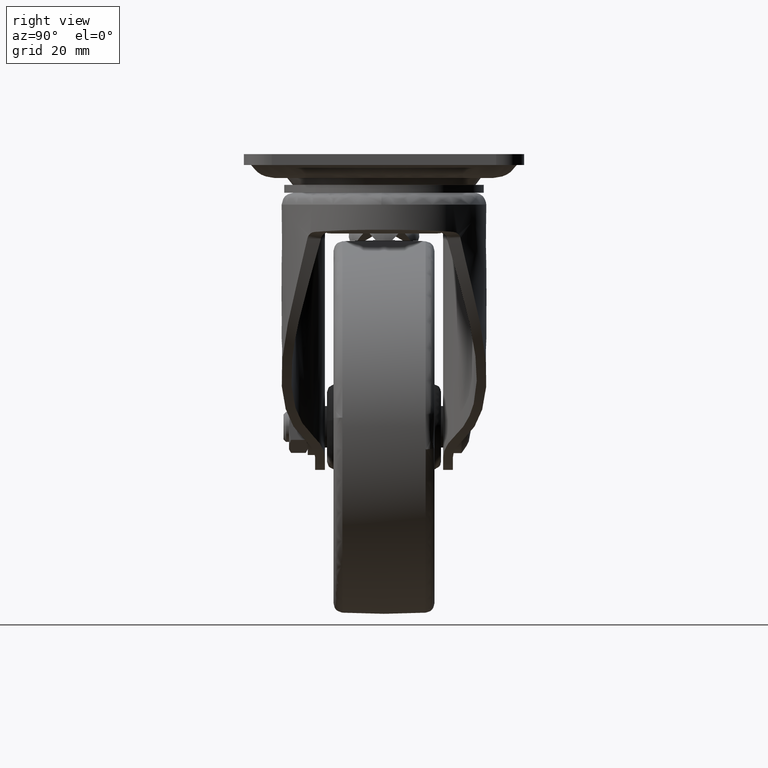
[diagram: clean part render]
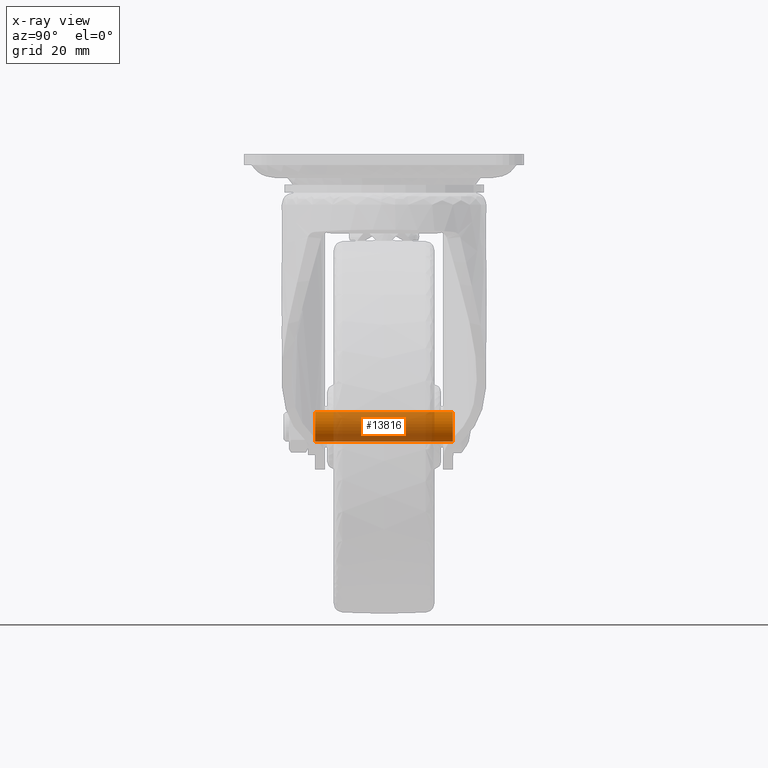
[diagram: x-ray — body ghosted, one internal face saturated and labeled with its STEP entity id]
A machine part, right view, then the same camera in x-ray: the body is ghosted and one INTERNAL B-rep face — a face not visible from any outside direction — is saturated and labeled: STEP entity #13816.
In plain terms, the highlighted face is a freeform B-spline surface patch.
Its self-contained STEP definition (entity closure, byte-faithful):
#13682=CARTESIAN_POINT('',(-36.053046016119019,-19.338087299999959,-70.417258588510393));
#13683=CARTESIAN_POINT('',(-35.979141058142922,-19.338087299999952,-70.329869903323782));
#13684=CARTESIAN_POINT('',(-35.900359109678227,-19.338087299999948,-70.246851051800775));
#13685=CARTESIAN_POINT('',(-33.147629161478910,-19.338087299999952,-67.346078942122645));
#13686=CARTESIAN_POINT('',(-30.246857051800770,-19.338087299999948,-70.098808890321948));
#13687=CARTESIAN_POINT('',(-27.346084942122630,-19.338087299999952,-72.851538838521265));
#13688=CARTESIAN_POINT('',(-30.098814890321950,-19.338087299999948,-75.752310948199408));
#13689=CARTESIAN_POINT('',(-32.851544838521278,-19.338087299999952,-78.653083057877552));
#13690=CARTESIAN_POINT('',(-35.752316948199422,-19.338087299999948,-75.900353109678235));
#13691=CARTESIAN_POINT('',(-36.053046016119019,19.361108832500005,-70.417258588510393));
#13692=CARTESIAN_POINT('',(-35.979141058142922,19.361108832500001,-70.329869903323782));
#13693=CARTESIAN_POINT('',(-35.900359109678227,19.361108832500001,-70.246851051800775));
#13694=CARTESIAN_POINT('',(-33.147629161478910,19.361108832499998,-67.346078942122645));
#13695=CARTESIAN_POINT('',(-30.246857051800770,19.361108832500001,-70.098808890321948));
#13696=CARTESIAN_POINT('',(-27.346084942122630,19.361108832499998,-72.851538838521265));
#13697=CARTESIAN_POINT('',(-30.098814890321950,19.361108832500001,-75.752310948199408));
#13698=CARTESIAN_POINT('',(-32.851544838521278,19.361108832499998,-78.653083057877552));
#13699=CARTESIAN_POINT('',(-35.752316948199422,19.361108832500001,-75.900353109678235));
#13707=(BOUNDED_SURFACE()B_SPLINE_SURFACE(2,1,((#13682,#13691),(#13683,#13692),(#13684,#13693),(#13685,#13694),(#13686,#13695),(#13687,#13696),(#13688,#13697),(#13689,#13698),(#13690,#13699)),.UNSPECIFIED.,.F.,.F.,.U.)B_SPLINE_SURFACE_WITH_KNOTS((3,2,2,2,3),(2,2),(0.0,0.265030405748802,6.890790549468830,13.516550693188860,20.142310836908891),(0.0,38.699196132499956),.UNSPECIFIED.)GEOMETRIC_REPRESENTATION_ITEM()RATIONAL_B_SPLINE_SURFACE(((0.977505800795127,0.977505800795127),(0.988284271247462,0.988284271247462),(1.0,1.0),(0.707106781186548,0.707106781186548),(1.0,1.0),(0.707106781186548,0.707106781186548),(1.0,1.0),(0.707106781186548,0.707106781186548),(1.0,1.0)))REPRESENTATION_ITEM('')SURFACE());
#13708=CARTESIAN_POINT('',(-36.053047317724051,-18.417226000005780,-70.417258051922644));
#13709=VERTEX_POINT('',#13708);
#13710=CARTESIAN_POINT('',(-32.999587000000091,-18.417225999999950,-69.000581000000082));
#13711=VERTEX_POINT('',#13710);
#13712=CARTESIAN_POINT('',(-36.053047317724051,-18.417226000005780,-70.417258051922644));
#13713=CARTESIAN_POINT('',(-35.702919161758402,-18.417226000005058,-70.002239088681890));
#13714=CARTESIAN_POINT('',(-34.771955140853393,-18.417226000003431,-69.273655220542892));
#13715=CARTESIAN_POINT('',(-33.615033672979202,-18.417226000001090,-68.999450940893212));
#13716=CARTESIAN_POINT('',(-32.999587000000091,-18.417225999999950,-69.000581000000082));
#13717=B_SPLINE_CURVE_WITH_KNOTS('',3,(#13712,#13713,#13714,#13715,#13716),.UNSPECIFIED.,.F.,.U.,(4,1,4),(0.000000164895850,1.628678968990966,3.474445380908315),.UNSPECIFIED.);
#13718=EDGE_CURVE('',#13709,#13711,#13717,.T.);
#13719=ORIENTED_EDGE('',*,*,#13718,.T.);
#13720=CARTESIAN_POINT('',(-29.000587000003790,-18.417225999999950,-72.999586436848105));
#13721=VERTEX_POINT('',#13720);
#13722=CARTESIAN_POINT('',(-32.999587000000091,-18.417225999999950,-69.000581000000082));
#13723=CARTESIAN_POINT('',(-32.574277512822832,-18.417225999999982,-69.000402115608949));
#13724=CARTESIAN_POINT('',(-31.658198718596960,-18.417225999999928,-69.147861283258933));
#13725=CARTESIAN_POINT('',(-30.463016461798770,-18.417225999999971,-69.805577821901124));
#13726=CARTESIAN_POINT('',(-29.694970454120551,-18.417225999999960,-70.674580693023927));
#13727=CARTESIAN_POINT('',(-29.150615483170551,-18.417225999999971,-71.724034790504930));
#13728=CARTESIAN_POINT('',(-28.999949602333920,-18.417225999999939,-72.475981080521549));
#13729=CARTESIAN_POINT('',(-29.000587000003790,-18.417225999999950,-72.999586436848105));
#13730=B_SPLINE_CURVE_WITH_KNOTS('',3,(#13722,#13723,#13724,#13725,#13726,#13727,#13728,#13729),.UNSPECIFIED.,.F.,.U.,(4,1,1,1,1,4),(0.000000570417261,1.275966018257277,2.748302226461737,4.024210952756988,4.711331550390830,6.281775206021013),.UNSPECIFIED.);
#13731=EDGE_CURVE('',#13711,#13721,#13730,.T.);
#13732=ORIENTED_EDGE('',*,*,#13731,.T.);
#13733=CARTESIAN_POINT('',(-32.999587000000091,-18.417225999999950,-76.998581000000087));
#13734=VERTEX_POINT('',#13733);
#13735=CARTESIAN_POINT('',(-29.000587000003790,-18.417225999999950,-72.999586436848105));
#13736=CARTESIAN_POINT('',(-29.000022343735939,-18.417225999999928,-73.523141864472095));
#13737=CARTESIAN_POINT('',(-29.202625247749200,-18.417225999999999,-74.536972989219720));
#13738=CARTESIAN_POINT('',(-29.946362449020160,-18.417225999999850,-75.680588080673814));
#13739=CARTESIAN_POINT('',(-30.762172835446719,-18.417226000000131,-76.349429010388945));
#13740=CARTESIAN_POINT('',(-31.723988984846301,-18.417225999999712,-76.848615274708351));
#13741=CARTESIAN_POINT('',(-32.475995380133469,-18.417226000000131,-76.999198567043749));
#13742=CARTESIAN_POINT('',(-32.999587000000091,-18.417225999999950,-76.998581000000087));
#13743=B_SPLINE_CURVE_WITH_KNOTS('',3,(#13735,#13736,#13737,#13738,#13739,#13740,#13741,#13742),.UNSPECIFIED.,.F.,.U.,(4,1,1,1,1,4),(0.000000577861195,1.570442703238776,3.042814447024089,4.024207022181656,4.711326949148154,6.281769077273231),.UNSPECIFIED.);
#13744=EDGE_CURVE('',#13721,#13734,#13743,.T.);
#13745=ORIENTED_EDGE('',*,*,#13744,.T.);
#13746=CARTESIAN_POINT('',(-35.752315717224690,-18.417225999996099,-75.900352406589491));
#13747=VERTEX_POINT('',#13746);
#13748=CARTESIAN_POINT('',(-32.999587000000091,-18.417225999999950,-76.998581000000087));
#13749=CARTESIAN_POINT('',(-33.410720550129042,-18.417225999999381,-76.998721488226863));
#13750=CARTESIAN_POINT('',(-34.422766549944988,-18.417225999997981,-76.841276181357074));
#13751=CARTESIAN_POINT('',(-35.316966650312878,-18.417225999996681,-76.314834922514351));
#13752=CARTESIAN_POINT('',(-35.752315717224690,-18.417225999996099,-75.900352406589491));
#13753=B_SPLINE_CURVE_WITH_KNOTS('',3,(#13748,#13749,#13750,#13751,#13752),.UNSPECIFIED.,.F.,.U.,(4,1,4),(0.000000148182944,1.233458196994346,3.036183950080805),.UNSPECIFIED.);
#13754=EDGE_CURVE('',#13734,#13747,#13753,.T.);
#13755=ORIENTED_EDGE('',*,*,#13754,.T.);
#13756=CARTESIAN_POINT('',(-35.752315720667141,18.417225999999999,-75.900352403322728));
#13757=VERTEX_POINT('',#13756);
#13758=CARTESIAN_POINT('',(-35.752315717224690,-18.417225999996099,-75.900352406589491));
#13759=CARTESIAN_POINT('',(-35.752315720667141,18.417225999999999,-75.900352403322728));
#13760=QUASI_UNIFORM_CURVE('',1,(#13758,#13759),.UNSPECIFIED.,.F.,.U.);
#13761=EDGE_CURVE('',#13747,#13757,#13760,.T.);
#13762=ORIENTED_EDGE('',*,*,#13761,.T.);
#13763=CARTESIAN_POINT('',(-32.999587000000091,18.417225999999999,-76.998581000000087));
#13764=VERTEX_POINT('',#13763);
#13765=CARTESIAN_POINT('',(-32.999587000000091,18.417225999999999,-76.998581000000087));
#13766=CARTESIAN_POINT('',(-33.537321605612590,18.417226000000010,-76.999243966707368));
#13767=CARTESIAN_POINT('',(-34.548763520011498,18.417225999999971,-76.791109844655722));
#13768=CARTESIAN_POINT('',(-35.408409337083413,18.417226000000010,-76.227210720850309));
#13769=CARTESIAN_POINT('',(-35.752315720667141,18.417225999999999,-75.900352403322728));
#13770=B_SPLINE_CURVE_WITH_KNOTS('',3,(#13765,#13766,#13767,#13768,#13769),.UNSPECIFIED.,.F.,.U.,(4,1,4),(0.000000148180293,1.612929655403312,3.036183954826933),.UNSPECIFIED.);
#13771=EDGE_CURVE('',#13764,#13757,#13770,.T.);
#13772=ORIENTED_EDGE('',*,*,#13771,.F.);
#13773=CARTESIAN_POINT('',(-29.000587000003790,18.417225999999999,-72.999586436848105));
#13774=VERTEX_POINT('',#13773);
#13775=CARTESIAN_POINT('',(-29.000587000003790,18.417225999999999,-72.999586436848105));
#13776=CARTESIAN_POINT('',(-28.999425388704761,18.417226000000081,-73.621487137595082));
#13777=CARTESIAN_POINT('',(-29.202945872039130,18.417225999999850,-74.471084162419245));
#13778=CARTESIAN_POINT('',(-29.806224779022500,18.417226000000099,-75.449433385555949));
#13779=CARTESIAN_POINT('',(-30.455722396880009,18.417225999999960,-76.149017000226877));
#13780=CARTESIAN_POINT('',(-31.527634192035741,18.417225999999982,-76.809540640131516));
#13781=CARTESIAN_POINT('',(-32.476051069198100,18.417226000000070,-76.999138426340679));
#13782=CARTESIAN_POINT('',(-32.999587000000091,18.417225999999999,-76.998581000000087));
#13783=B_SPLINE_CURVE_WITH_KNOTS('',3,(#13775,#13776,#13777,#13778,#13779,#13780,#13781,#13782),.UNSPECIFIED.,.F.,.U.,(4,1,1,1,1,4),(0.000000577861195,1.864920626549976,2.552035655784209,3.435285418544370,4.711326949148154,6.281769077273231),.UNSPECIFIED.);
#13784=EDGE_CURVE('',#13774,#13764,#13783,.T.);
#13785=ORIENTED_EDGE('',*,*,#13784,.F.);
#13786=CARTESIAN_POINT('',(-32.999587000000091,18.417225999999999,-69.000581000000082));
#13787=VERTEX_POINT('',#13786);
#13788=CARTESIAN_POINT('',(-32.999587000000091,18.417225999999999,-69.000581000000082));
#13789=CARTESIAN_POINT('',(-32.574277512822832,18.417226000000021,-69.000402115608949));
#13790=CARTESIAN_POINT('',(-31.658198718596960,18.417225999999989,-69.147861283258933));
#13791=CARTESIAN_POINT('',(-30.463016461798770,18.417226000000010,-69.805577821901124));
#13792=CARTESIAN_POINT('',(-29.694970454120540,18.417226000000021,-70.674580693023927));
#13793=CARTESIAN_POINT('',(-29.150615483170551,18.417226000000021,-71.724034790504930));
#13794=CARTESIAN_POINT('',(-28.999949602333920,18.417225999999982,-72.475981080521549));
#13795=CARTESIAN_POINT('',(-29.000587000003790,18.417225999999999,-72.999586436848105));
#13796=B_SPLINE_CURVE_WITH_KNOTS('',3,(#13788,#13789,#13790,#13791,#13792,#13793,#13794,#13795),.UNSPECIFIED.,.F.,.U.,(4,1,1,1,1,4),(0.000000570417261,1.275966018257277,2.748302226461737,4.024210952756988,4.711331550390830,6.281775206021013),.UNSPECIFIED.);
#13797=EDGE_CURVE('',#13787,#13774,#13796,.T.);
#13798=ORIENTED_EDGE('',*,*,#13797,.F.);
#13799=CARTESIAN_POINT('',(-36.053047314290282,18.417225999999999,-70.417258047862390));
#13800=VERTEX_POINT('',#13799);
#13801=CARTESIAN_POINT('',(-36.053047314290282,18.417225999999999,-70.417258047862390));
#13802=CARTESIAN_POINT('',(-35.702918724408313,18.417225999999989,-70.002237241871327));
#13803=CARTESIAN_POINT('',(-34.771956330382139,18.417226000000070,-69.273657123805364));
#13804=CARTESIAN_POINT('',(-33.615032978243413,18.417225999999939,-68.999450520329916));
#13805=CARTESIAN_POINT('',(-32.999587000000091,18.417225999999999,-69.000581000000082));
#13806=B_SPLINE_CURVE_WITH_KNOTS('',3,(#13801,#13802,#13803,#13804,#13805),.UNSPECIFIED.,.F.,.U.,(4,1,4),(0.000000164894955,1.628678966497728,3.474445375590269),.UNSPECIFIED.);
#13807=EDGE_CURVE('',#13800,#13787,#13806,.T.);
#13808=ORIENTED_EDGE('',*,*,#13807,.F.);
#13809=CARTESIAN_POINT('',(-36.053047317724051,-18.417226000005780,-70.417258051922644));
#13810=CARTESIAN_POINT('',(-36.053047314290282,18.417225999999999,-70.417258047862390));
#13811=QUASI_UNIFORM_CURVE('',1,(#13809,#13810),.UNSPECIFIED.,.F.,.U.);
#13812=EDGE_CURVE('',#13709,#13800,#13811,.T.);
#13813=ORIENTED_EDGE('',*,*,#13812,.F.);
#13814=EDGE_LOOP('',(#13719,#13732,#13745,#13755,#13762,#13772,#13785,#13798,#13808,#13813));
#13815=FACE_OUTER_BOUND('',#13814,.T.);
#13816=ADVANCED_FACE('',(#13815),#13707,.T.);